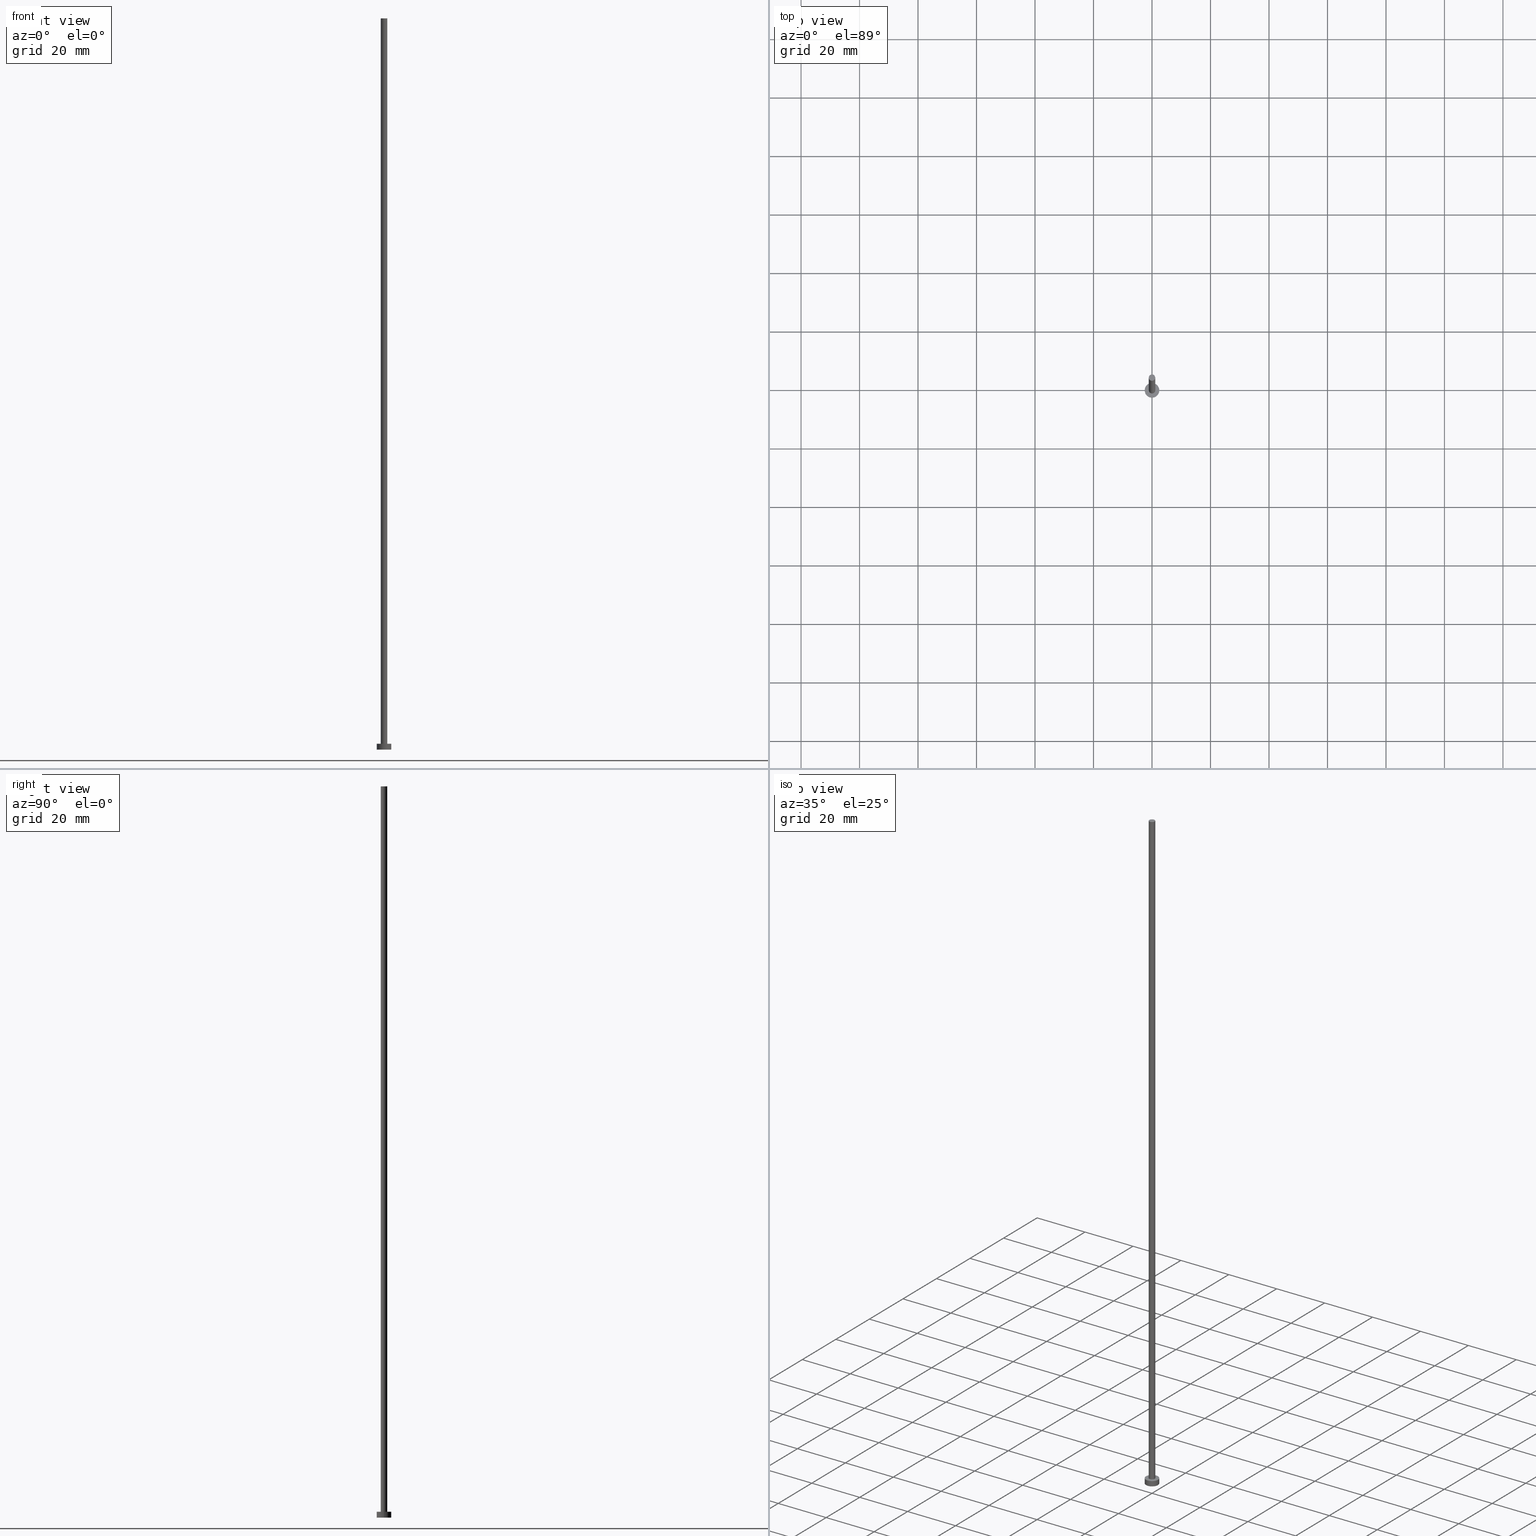
[diagram: canonical four-view strip — front | top / right | iso, engineering-drawing reading convention]
A machine part, canonical four-view strip (front | top / right | iso — engineering-drawing reading convention). The complete STEP part file that produces these views, byte-faithful:
ISO-10303-21;
HEADER;
FILE_DESCRIPTION (( 'STEP AP203' ),
    '1' );
FILE_NAME ('accd.STEP',
    '2023-02-13T15:58:11',
    ( '' ),
    ( '' ),
    'SwSTEP 2.0',
    'SolidWorks 2019',
    '' );
FILE_SCHEMA (( 'CONFIG_CONTROL_DESIGN' ));
ENDSEC;

DATA;
#1 = APPROVAL_PERSON_ORGANIZATION ( #183, #94, #44 ) ;
#2 = DIRECTION ( 'NONE',  ( 1.000000000000000000, 0.000000000000000000, 0.000000000000000000 ) ) ;
#3 = ORIENTED_EDGE ( 'NONE', *, *, #40, .F. ) ;
#4 = ORIENTED_EDGE ( 'NONE', *, *, #124, .T. ) ;
#5 = EDGE_LOOP ( 'NONE', ( #203, #109 ) ) ;
#6 = AXIS2_PLACEMENT_3D ( 'NONE', #151, #67, #30 ) ;
#7 = VECTOR ( 'NONE', #242, 1000.000000000000000 ) ;
#8 = CC_DESIGN_SECURITY_CLASSIFICATION ( #102, ( #20 ) ) ;
#9 = PERSON_AND_ORGANIZATION_ROLE ( 'creator' ) ;
#10 = PERSON_AND_ORGANIZATION ( #114, #198 ) ;
#11 = DIRECTION ( 'NONE',  ( -0.000000000000000000, -0.000000000000000000, -1.000000000000000000 ) ) ;
#12 = APPROVAL_STATUS ( 'not_yet_approved' ) ;
#13 = DIRECTION ( 'NONE',  ( 1.000000000000000000, 0.000000000000000000, 0.000000000000000000 ) ) ;
#14 = ORIENTED_EDGE ( 'NONE', *, *, #40, .T. ) ;
#15 = DIRECTION ( 'NONE',  ( 0.000000000000000000, 0.000000000000000000, 1.000000000000000000 ) ) ;
#16 = CALENDAR_DATE ( 2023, 13, 2 ) ;
#17 = DIRECTION ( 'NONE',  ( 0.000000000000000000, 0.000000000000000000, 1.000000000000000000 ) ) ;
#18 = VERTEX_POINT ( 'NONE', #226 ) ;
#19 = ORIENTED_EDGE ( 'NONE', *, *, #81, .F. ) ;
#20 = PRODUCT_DEFINITION_FORMATION_WITH_SPECIFIED_SOURCE ( 'LIBOVOLN�', '', #175, .NOT_KNOWN. ) ;
#21 = CC_DESIGN_PERSON_AND_ORGANIZATION_ASSIGNMENT ( #165, #138, ( #175 ) ) ;
#22 = DESIGN_CONTEXT ( 'detailed design', #100, 'design' ) ;
#23 = ORIENTED_EDGE ( 'NONE', *, *, #83, .F. ) ;
#24 = CIRCLE ( 'NONE', #121, 1.100000000000000089 ) ;
#25 = DIRECTION ( 'NONE',  ( 1.000000000000000000, 0.000000000000000000, -0.000000000000000000 ) ) ;
#26 =( NAMED_UNIT ( * ) SI_UNIT ( $, .STERADIAN. ) SOLID_ANGLE_UNIT ( ) );
#27 = APPROVAL ( #12, 'NEUR�EN�' ) ;
#28 = CALENDAR_DATE ( 2023, 13, 2 ) ;
#29 = APPROVAL_STATUS ( 'not_yet_approved' ) ;
#30 = DIRECTION ( 'NONE',  ( 1.000000000000000000, 0.000000000000000000, -0.000000000000000000 ) ) ;
#31 = COORDINATED_UNIVERSAL_TIME_OFFSET ( 1, 0, .AHEAD. ) ;
#32 = DIRECTION ( 'NONE',  ( 1.000000000000000000, 0.000000000000000000, 0.000000000000000000 ) ) ;
#33 = CLOSED_SHELL ( 'NONE', ( #159, #164, #116, #246, #177, #220, #210 ) ) ;
#34 = AXIS2_PLACEMENT_3D ( 'NONE', #232, #230, #201 ) ;
#35 = VERTEX_POINT ( 'NONE', #252 ) ;
#36 = AXIS2_PLACEMENT_3D ( 'NONE', #162, #55, #103 ) ;
#37 = CIRCLE ( 'NONE', #184, 2.500000000000000000 ) ;
#38 = DIRECTION ( 'NONE',  ( -0.000000000000000000, -0.000000000000000000, -1.000000000000000000 ) ) ;
#39 = MECHANICAL_CONTEXT ( 'NONE', #168, 'mechanical' ) ;
#40 = EDGE_CURVE ( 'NONE', #180, #18, #192, .T. ) ;
#41 = CC_DESIGN_DATE_AND_TIME_ASSIGNMENT ( #86, #107, ( #136 ) ) ;
#42 = CC_DESIGN_APPROVAL ( #94, ( #136 ) ) ;
#43 = AXIS2_PLACEMENT_3D ( 'NONE', #57, #38, #122 ) ;
#44 = APPROVAL_ROLE ( '' ) ;
#45 = CALENDAR_DATE ( 2023, 13, 2 ) ;
#46 = CC_DESIGN_DATE_AND_TIME_ASSIGNMENT ( #173, #126, ( #102 ) ) ;
#47 = DIRECTION ( 'NONE',  ( 1.000000000000000000, 0.000000000000000000, -0.000000000000000000 ) ) ;
#48 = LOCAL_TIME ( 16, 58, 11.00000000000000000, #88 ) ;
#49 = DIRECTION ( 'NONE',  ( 1.000000000000000000, 0.000000000000000000, 0.000000000000000000 ) ) ;
#50 = ORIENTED_EDGE ( 'NONE', *, *, #145, .F. ) ;
#51 = AXIS2_PLACEMENT_3D ( 'NONE', #216, #17, #2 ) ;
#52 = ADVANCED_BREP_SHAPE_REPRESENTATION ( 'accd', ( #204, #111 ), #134 ) ;
#53 = DIRECTION ( 'NONE',  ( 0.000000000000000000, 0.000000000000000000, 1.000000000000000000 ) ) ;
#54 = EDGE_CURVE ( 'NONE', #253, #154, #142, .T. ) ;
#55 = DIRECTION ( 'NONE',  ( -0.000000000000000000, -0.000000000000000000, -1.000000000000000000 ) ) ;
#56 = ORIENTED_EDGE ( 'NONE', *, *, #63, .F. ) ;
#57 = CARTESIAN_POINT ( 'NONE',  ( 0.000000000000000000, 0.000000000000000000, 250.0000000000000000 ) ) ;
#58 = EDGE_CURVE ( 'NONE', #154, #35, #213, .T. ) ;
#59 = LINE ( 'NONE', #190, #104 ) ;
#60 = CARTESIAN_POINT ( 'NONE',  ( 0.000000000000000000, 0.000000000000000000, 2.000000000000000000 ) ) ;
#61 = DIRECTION ( 'NONE',  ( -0.000000000000000000, -0.000000000000000000, -1.000000000000000000 ) ) ;
#62 = VECTOR ( 'NONE', #248, 1000.000000000000000 ) ;
#63 = EDGE_CURVE ( 'NONE', #253, #150, #219, .T. ) ;
#64 = PRODUCT_DEFINITION_SHAPE ( 'NONE', 'NONE',  #136 ) ;
#65 = LOCAL_TIME ( 16, 58, 11.00000000000000000, #191 ) ;
#66 = PERSON_AND_ORGANIZATION_ROLE ( 'classification_officer' ) ;
#67 = DIRECTION ( 'NONE',  ( 0.000000000000000000, 0.000000000000000000, 1.000000000000000000 ) ) ;
#68 = CARTESIAN_POINT ( 'NONE',  ( -1.100000000000000089, 0.000000000000000000, 250.0000000000000000 ) ) ;
#69 = PERSON_AND_ORGANIZATION ( #114, #198 ) ;
#70 = VERTEX_POINT ( 'NONE', #132 ) ;
#71 = DIRECTION ( 'NONE',  ( 0.000000000000000000, 0.000000000000000000, 1.000000000000000000 ) ) ;
#72 = APPROVAL ( #247, 'NEUR�EN�' ) ;
#73 = EDGE_LOOP ( 'NONE', ( #231, #119 ) ) ;
#74 = DIRECTION ( 'NONE',  ( 0.000000000000000000, 0.000000000000000000, 1.000000000000000000 ) ) ;
#75 = PRODUCT_RELATED_PRODUCT_CATEGORY ( 'detail', '', ( #175 ) ) ;
#76 = AXIS2_PLACEMENT_3D ( 'NONE', #127, #15, #47 ) ;
#77 = DIRECTION ( 'NONE',  ( 0.000000000000000000, 0.000000000000000000, 1.000000000000000000 ) ) ;
#78 = EDGE_CURVE ( 'NONE', #70, #18, #249, .T. ) ;
#79 = CARTESIAN_POINT ( 'NONE',  ( -1.100000000000000089, 0.000000000000000000, 250.0000000000000000 ) ) ;
#80 = ORIENTED_EDGE ( 'NONE', *, *, #58, .F. ) ;
#81 = EDGE_CURVE ( 'NONE', #105, #180, #186, .T. ) ;
#82 = CARTESIAN_POINT ( 'NONE',  ( 0.000000000000000000, 0.000000000000000000, 0.000000000000000000 ) ) ;
#83 = EDGE_CURVE ( 'NONE', #18, #70, #206, .T. ) ;
#84 = CARTESIAN_POINT ( 'NONE',  ( 2.500000000000000000, 3.061616997868383141E-16, 2.000000000000000000 ) ) ;
#85 = FACE_OUTER_BOUND ( 'NONE', #73, .T. ) ;
#86 = DATE_AND_TIME ( #140, #48 ) ;
#87 = DIRECTION ( 'NONE',  ( 1.000000000000000000, 0.000000000000000000, 0.000000000000000000 ) ) ;
#88 = COORDINATED_UNIVERSAL_TIME_OFFSET ( 1, 0, .AHEAD. ) ;
#89 = CARTESIAN_POINT ( 'NONE',  ( 0.000000000000000000, 0.000000000000000000, 2.000000000000000000 ) ) ;
#90 = APPROVAL_PERSON_ORGANIZATION ( #92, #72, #166 ) ;
#91 = CC_DESIGN_PERSON_AND_ORGANIZATION_ASSIGNMENT ( #149, #66, ( #102 ) ) ;
#92 = PERSON_AND_ORGANIZATION ( #114, #198 ) ;
#93 = PLANE ( 'NONE',  #76 ) ;
#94 = APPROVAL ( #29, 'NEUR�EN�' ) ;
#95 = EDGE_LOOP ( 'NONE', ( #19, #4, #174, #3 ) ) ;
#96 = ORIENTED_EDGE ( 'NONE', *, *, #187, .F. ) ;
#97 = AXIS2_PLACEMENT_3D ( 'NONE', #200, #170, #13 ) ;
#98 = CARTESIAN_POINT ( 'NONE',  ( 0.000000000000000000, 0.000000000000000000, 0.000000000000000000 ) ) ;
#99 = ORIENTED_EDGE ( 'NONE', *, *, #236, .F. ) ;
#100 = APPLICATION_CONTEXT ( 'configuration controlled 3d designs of mechanical parts and assemblies' ) ;
#101 = AXIS2_PLACEMENT_3D ( 'NONE', #147, #77, #32 ) ;
#102 = SECURITY_CLASSIFICATION ( '', '', #250 ) ;
#103 = DIRECTION ( 'NONE',  ( -1.000000000000000000, 0.000000000000000000, 0.000000000000000000 ) ) ;
#104 = VECTOR ( 'NONE', #61, 1000.000000000000000 ) ;
#105 = VERTEX_POINT ( 'NONE', #234 ) ;
#106 = DATE_AND_TIME ( #28, #143 ) ;
#107 = DATE_TIME_ROLE ( 'creation_date' ) ;
#108 = FACE_OUTER_BOUND ( 'NONE', #239, .T. ) ;
#109 = ORIENTED_EDGE ( 'NONE', *, *, #187, .T. ) ;
#110 = FACE_OUTER_BOUND ( 'NONE', #115, .T. ) ;
#111 = AXIS2_PLACEMENT_3D ( 'NONE', #82, #163, #211 ) ;
#112 = ORIENTED_EDGE ( 'NONE', *, *, #54, .F. ) ;
#113 = CARTESIAN_POINT ( 'NONE',  ( 0.000000000000000000, 0.000000000000000000, 2.000000000000000000 ) ) ;
#114 = PERSON ( 'NEUR�EN�', 'NEUR�EN�', 'NEUR�EN�', ('NEUR�EN�'), ('NEUR�EN�'), ('NEUR�EN�') ) ;
#115 = EDGE_LOOP ( 'NONE', ( #23, #131 ) ) ;
#116 = ADVANCED_FACE ( 'NONE', ( #235 ), #118, .T. ) ;
#117 = AXIS2_PLACEMENT_3D ( 'NONE', #156, #53, #160 ) ;
#118 = CYLINDRICAL_SURFACE ( 'NONE', #36, 2.500000000000000000 ) ;
#119 = ORIENTED_EDGE ( 'NONE', *, *, #81, .T. ) ;
#120 = DIRECTION ( 'NONE',  ( 0.000000000000000000, 0.000000000000000000, 1.000000000000000000 ) ) ;
#121 = AXIS2_PLACEMENT_3D ( 'NONE', #202, #71, #49 ) ;
#122 = DIRECTION ( 'NONE',  ( -1.000000000000000000, 0.000000000000000000, 0.000000000000000000 ) ) ;
#123 = CYLINDRICAL_SURFACE ( 'NONE', #130, 2.500000000000000000 ) ;
#124 = EDGE_CURVE ( 'NONE', #105, #70, #240, .T. ) ;
#125 = FACE_BOUND ( 'NONE', #205, .T. ) ;
#126 = DATE_TIME_ROLE ( 'classification_date' ) ;
#127 = CARTESIAN_POINT ( 'NONE',  ( 0.000000000000000000, 0.000000000000000000, 0.000000000000000000 ) ) ;
#128 = DATE_AND_TIME ( #45, #209 ) ;
#129 = AXIS2_PLACEMENT_3D ( 'NONE', #113, #74, #153 ) ;
#130 = AXIS2_PLACEMENT_3D ( 'NONE', #89, #172, #255 ) ;
#131 = ORIENTED_EDGE ( 'NONE', *, *, #78, .F. ) ;
#132 = CARTESIAN_POINT ( 'NONE',  ( 2.500000000000000000, 3.061616997868383141E-16, 0.000000000000000000 ) ) ;
#133 = ORIENTED_EDGE ( 'NONE', *, *, #124, .F. ) ;
#134 =( GEOMETRIC_REPRESENTATION_CONTEXT ( 3 ) GLOBAL_UNCERTAINTY_ASSIGNED_CONTEXT ( ( #223 ) ) GLOBAL_UNIT_ASSIGNED_CONTEXT ( ( #245, #238, #26 ) ) REPRESENTATION_CONTEXT ( 'NONE', 'WORKASPACE' ) );
#135 = CC_DESIGN_PERSON_AND_ORGANIZATION_ASSIGNMENT ( #10, #199, ( #20 ) ) ;
#136 = PRODUCT_DEFINITION ( 'NEZN�M�', '', #20, #22 ) ;
#137 = CC_DESIGN_APPROVAL ( #72, ( #20 ) ) ;
#138 = PERSON_AND_ORGANIZATION_ROLE ( 'design_owner' ) ;
#139 = CARTESIAN_POINT ( 'NONE',  ( 1.100000000000000089, 1.347111479062088503E-16, 250.0000000000000000 ) ) ;
#140 = CALENDAR_DATE ( 2023, 13, 2 ) ;
#141 = CYLINDRICAL_SURFACE ( 'NONE', #34, 1.100000000000000089 ) ;
#142 = LINE ( 'NONE', #68, #233 ) ;
#143 = LOCAL_TIME ( 16, 58, 11.00000000000000000, #225 ) ;
#144 = ORIENTED_EDGE ( 'NONE', *, *, #54, .T. ) ;
#145 = EDGE_CURVE ( 'NONE', #150, #35, #59, .T. ) ;
#146 = COORDINATED_UNIVERSAL_TIME_OFFSET ( 1, 0, .AHEAD. ) ;
#147 = CARTESIAN_POINT ( 'NONE',  ( 0.000000000000000000, 0.000000000000000000, 250.0000000000000000 ) ) ;
#148 = ORIENTED_EDGE ( 'NONE', *, *, #145, .T. ) ;
#149 = PERSON_AND_ORGANIZATION ( #114, #198 ) ;
#150 = VERTEX_POINT ( 'NONE', #139 ) ;
#151 = CARTESIAN_POINT ( 'NONE',  ( 0.000000000000000000, 0.000000000000000000, 250.0000000000000000 ) ) ;
#152 = FACE_OUTER_BOUND ( 'NONE', #5, .T. ) ;
#153 = DIRECTION ( 'NONE',  ( 1.000000000000000000, 0.000000000000000000, 0.000000000000000000 ) ) ;
#154 = VERTEX_POINT ( 'NONE', #227 ) ;
#155 = FACE_OUTER_BOUND ( 'NONE', #243, .T. ) ;
#156 = CARTESIAN_POINT ( 'NONE',  ( 0.000000000000000000, 0.000000000000000000, 0.000000000000000000 ) ) ;
#157 = AXIS2_PLACEMENT_3D ( 'NONE', #98, #158, #181 ) ;
#158 = DIRECTION ( 'NONE',  ( 0.000000000000000000, 0.000000000000000000, 1.000000000000000000 ) ) ;
#159 = ADVANCED_FACE ( 'NONE', ( #155 ), #161, .T. ) ;
#160 = DIRECTION ( 'NONE',  ( 1.000000000000000000, 0.000000000000000000, 0.000000000000000000 ) ) ;
#161 = CYLINDRICAL_SURFACE ( 'NONE', #43, 1.100000000000000089 ) ;
#162 = CARTESIAN_POINT ( 'NONE',  ( 0.000000000000000000, 0.000000000000000000, 2.000000000000000000 ) ) ;
#163 = DIRECTION ( 'NONE',  ( 0.000000000000000000, 0.000000000000000000, 1.000000000000000000 ) ) ;
#164 = ADVANCED_FACE ( 'NONE', ( #222 ), #123, .T. ) ;
#165 = PERSON_AND_ORGANIZATION ( #114, #198 ) ;
#166 = APPROVAL_ROLE ( '' ) ;
#167 = CARTESIAN_POINT ( 'NONE',  ( -2.500000000000000000, 0.000000000000000000, 2.000000000000000000 ) ) ;
#168 = APPLICATION_CONTEXT ( 'configuration controlled 3d designs of mechanical parts and assemblies' ) ;
#169 = APPROVAL_DATE_TIME ( #106, #72 ) ;
#170 = DIRECTION ( 'NONE',  ( 0.000000000000000000, 0.000000000000000000, 1.000000000000000000 ) ) ;
#171 = AXIS2_PLACEMENT_3D ( 'NONE', #60, #120, #25 ) ;
#172 = DIRECTION ( 'NONE',  ( -0.000000000000000000, -0.000000000000000000, -1.000000000000000000 ) ) ;
#173 = DATE_AND_TIME ( #16, #215 ) ;
#174 = ORIENTED_EDGE ( 'NONE', *, *, #78, .T. ) ;
#175 = PRODUCT ( 'accd', 'accd', '', ( #39 ) ) ;
#176 = DATE_AND_TIME ( #254, #65 ) ;
#177 = ADVANCED_FACE ( 'NONE', ( #110 ), #93, .F. ) ;
#178 = APPROVAL_PERSON_ORGANIZATION ( #196, #27, #251 ) ;
#179 = ORIENTED_EDGE ( 'NONE', *, *, #182, .F. ) ;
#180 = VERTEX_POINT ( 'NONE', #194 ) ;
#181 = DIRECTION ( 'NONE',  ( 1.000000000000000000, 0.000000000000000000, 0.000000000000000000 ) ) ;
#182 = EDGE_CURVE ( 'NONE', #35, #154, #24, .T. ) ;
#183 = PERSON_AND_ORGANIZATION ( #114, #198 ) ;
#184 = AXIS2_PLACEMENT_3D ( 'NONE', #197, #244, #87 ) ;
#185 = CC_DESIGN_PERSON_AND_ORGANIZATION_ASSIGNMENT ( #212, #195, ( #20 ) ) ;
#186 = CIRCLE ( 'NONE', #129, 2.500000000000000000 ) ;
#187 = EDGE_CURVE ( 'NONE', #150, #253, #188, .T. ) ;
#188 = CIRCLE ( 'NONE', #51, 1.100000000000000089 ) ;
#189 = CC_DESIGN_PERSON_AND_ORGANIZATION_ASSIGNMENT ( #69, #9, ( #136 ) ) ;
#190 = CARTESIAN_POINT ( 'NONE',  ( 1.100000000000000089, 1.347111479062088503E-16, 250.0000000000000000 ) ) ;
#191 = COORDINATED_UNIVERSAL_TIME_OFFSET ( 1, 0, .AHEAD. ) ;
#192 = LINE ( 'NONE', #167, #62 ) ;
#193 = EDGE_LOOP ( 'NONE', ( #133, #99, #14, #237 ) ) ;
#194 = CARTESIAN_POINT ( 'NONE',  ( -2.500000000000000000, 0.000000000000000000, 2.000000000000000000 ) ) ;
#195 = PERSON_AND_ORGANIZATION_ROLE ( 'creator' ) ;
#196 = PERSON_AND_ORGANIZATION ( #114, #198 ) ;
#197 = CARTESIAN_POINT ( 'NONE',  ( 0.000000000000000000, 0.000000000000000000, 2.000000000000000000 ) ) ;
#198 = ORGANIZATION ( 'NEUR�EN�', 'NEUR�EN�', '' ) ;
#199 = PERSON_AND_ORGANIZATION_ROLE ( 'design_supplier' ) ;
#200 = CARTESIAN_POINT ( 'NONE',  ( 0.000000000000000000, 0.000000000000000000, 2.000000000000000000 ) ) ;
#201 = DIRECTION ( 'NONE',  ( -1.000000000000000000, 0.000000000000000000, 0.000000000000000000 ) ) ;
#202 = CARTESIAN_POINT ( 'NONE',  ( 0.000000000000000000, 0.000000000000000000, 2.000000000000000000 ) ) ;
#203 = ORIENTED_EDGE ( 'NONE', *, *, #63, .T. ) ;
#204 = MANIFOLD_SOLID_BREP ( 'P�idat vysunut�m3', #33 ) ;
#205 = EDGE_LOOP ( 'NONE', ( #80, #179 ) ) ;
#206 = CIRCLE ( 'NONE', #117, 2.500000000000000000 ) ;
#207 = ORIENTED_EDGE ( 'NONE', *, *, #58, .T. ) ;
#208 = CC_DESIGN_APPROVAL ( #27, ( #102 ) ) ;
#209 = LOCAL_TIME ( 16, 58, 11.00000000000000000, #146 ) ;
#210 = ADVANCED_FACE ( 'NONE', ( #152 ), #218, .T. ) ;
#211 = DIRECTION ( 'NONE',  ( 1.000000000000000000, 0.000000000000000000, 0.000000000000000000 ) ) ;
#212 = PERSON_AND_ORGANIZATION ( #114, #198 ) ;
#213 = CIRCLE ( 'NONE', #97, 1.100000000000000089 ) ;
#214 = APPROVAL_DATE_TIME ( #128, #27 ) ;
#215 = LOCAL_TIME ( 16, 58, 11.00000000000000000, #31 ) ;
#216 = CARTESIAN_POINT ( 'NONE',  ( 0.000000000000000000, 0.000000000000000000, 250.0000000000000000 ) ) ;
#217 = ORIENTED_EDGE ( 'NONE', *, *, #182, .T. ) ;
#218 = PLANE ( 'NONE',  #6 ) ;
#219 = CIRCLE ( 'NONE', #101, 1.100000000000000089 ) ;
#220 = ADVANCED_FACE ( 'NONE', ( #108 ), #141, .T. ) ;
#221 = APPLICATION_PROTOCOL_DEFINITION ( 'international standard', 'config_control_design', 1994, #168 ) ;
#222 = FACE_OUTER_BOUND ( 'NONE', #95, .T. ) ;
#223 = UNCERTAINTY_MEASURE_WITH_UNIT (LENGTH_MEASURE( 1.000000000000000082E-05 ), #245, 'distance_accuracy_value', 'NONE');
#224 = APPLICATION_PROTOCOL_DEFINITION ( 'international standard', 'config_control_design', 1994, #100 ) ;
#225 = COORDINATED_UNIVERSAL_TIME_OFFSET ( 1, 0, .AHEAD. ) ;
#226 = CARTESIAN_POINT ( 'NONE',  ( -2.500000000000000000, 0.000000000000000000, 0.000000000000000000 ) ) ;
#227 = CARTESIAN_POINT ( 'NONE',  ( -1.100000000000000089, 0.000000000000000000, 2.000000000000000000 ) ) ;
#228 = APPROVAL_DATE_TIME ( #176, #94 ) ;
#229 = SHAPE_DEFINITION_REPRESENTATION ( #64, #52 ) ;
#230 = DIRECTION ( 'NONE',  ( -0.000000000000000000, -0.000000000000000000, -1.000000000000000000 ) ) ;
#231 = ORIENTED_EDGE ( 'NONE', *, *, #236, .T. ) ;
#232 = CARTESIAN_POINT ( 'NONE',  ( 0.000000000000000000, 0.000000000000000000, 250.0000000000000000 ) ) ;
#233 = VECTOR ( 'NONE', #11, 1000.000000000000000 ) ;
#234 = CARTESIAN_POINT ( 'NONE',  ( 2.500000000000000000, 3.061616997868383141E-16, 2.000000000000000000 ) ) ;
#235 = FACE_OUTER_BOUND ( 'NONE', #193, .T. ) ;
#236 = EDGE_CURVE ( 'NONE', #180, #105, #37, .T. ) ;
#237 = ORIENTED_EDGE ( 'NONE', *, *, #83, .T. ) ;
#238 =( NAMED_UNIT ( * ) PLANE_ANGLE_UNIT ( ) SI_UNIT ( $, .RADIAN. ) );
#239 = EDGE_LOOP ( 'NONE', ( #50, #56, #144, #207 ) ) ;
#240 = LINE ( 'NONE', #84, #7 ) ;
#241 = PLANE ( 'NONE',  #171 ) ;
#242 = DIRECTION ( 'NONE',  ( -0.000000000000000000, -0.000000000000000000, -1.000000000000000000 ) ) ;
#243 = EDGE_LOOP ( 'NONE', ( #96, #148, #217, #112 ) ) ;
#244 = DIRECTION ( 'NONE',  ( 0.000000000000000000, 0.000000000000000000, 1.000000000000000000 ) ) ;
#245 =( LENGTH_UNIT ( ) NAMED_UNIT ( * ) SI_UNIT ( .MILLI., .METRE. ) );
#246 = ADVANCED_FACE ( 'NONE', ( #125, #85 ), #241, .T. ) ;
#247 = APPROVAL_STATUS ( 'not_yet_approved' ) ;
#248 = DIRECTION ( 'NONE',  ( -0.000000000000000000, -0.000000000000000000, -1.000000000000000000 ) ) ;
#249 = CIRCLE ( 'NONE', #157, 2.500000000000000000 ) ;
#250 = SECURITY_CLASSIFICATION_LEVEL ( 'unclassified' ) ;
#251 = APPROVAL_ROLE ( '' ) ;
#252 = CARTESIAN_POINT ( 'NONE',  ( 1.100000000000000089, 1.347111479062088503E-16, 2.000000000000000000 ) ) ;
#253 = VERTEX_POINT ( 'NONE', #79 ) ;
#254 = CALENDAR_DATE ( 2023, 13, 2 ) ;
#255 = DIRECTION ( 'NONE',  ( -1.000000000000000000, 0.000000000000000000, 0.000000000000000000 ) ) ;
ENDSEC;
END-ISO-10303-21;
